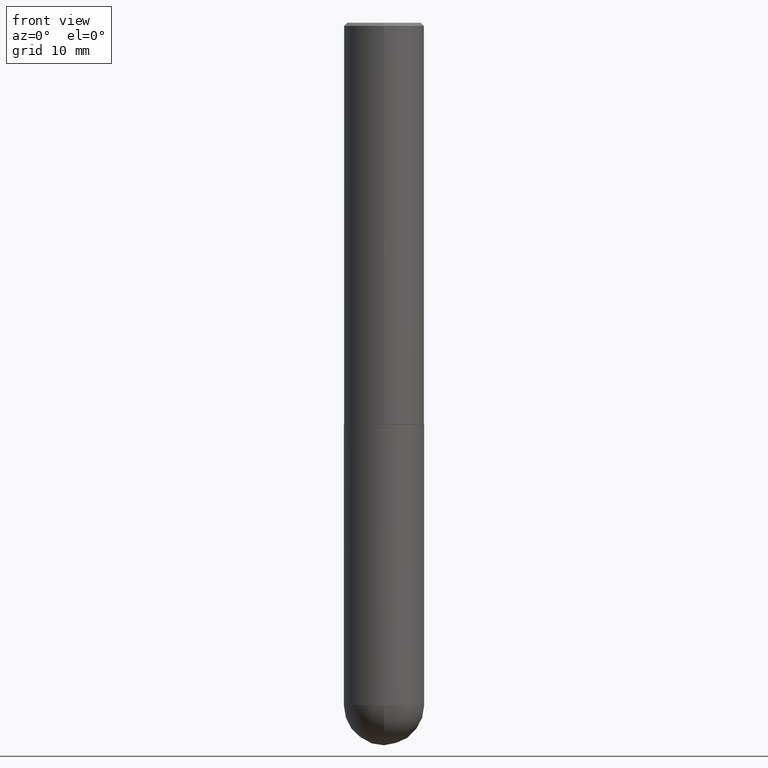
[diagram: clean part render]
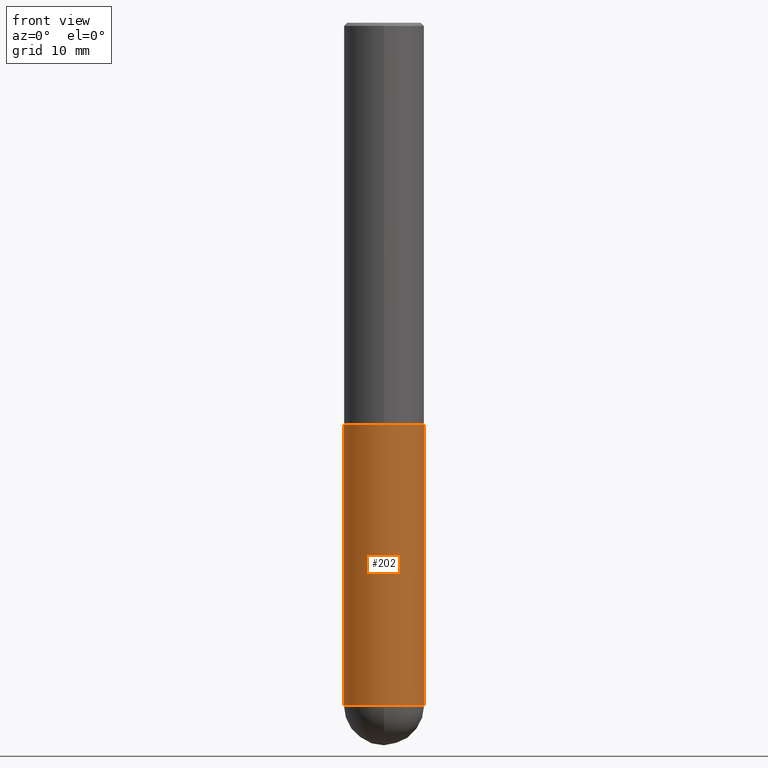
[diagram: same view with one face highlighted and labeled with its STEP entity id]
A machine part, front view. The second image highlights one B-rep face of the part: STEP entity #202.
In plain terms, the highlighted cylindrical surface (partial cylindrical patch) has radius 6.35 mm, axis along (-0, 0, 1).
Its self-contained STEP definition (entity closure, byte-faithful):
#5 = CYLINDRICAL_SURFACE ( 'NONE', #236, 0.2500000000000000000 ) ;
#19 = CARTESIAN_POINT ( 'NONE',  ( 0.2500000000000000000, -1.745740669421566678E-15, 1.219044193948983948E-29 ) ) ;
#28 = VECTOR ( 'NONE', #279, 39.37007874015748143 ) ;
#32 = CARTESIAN_POINT ( 'NONE',  ( 6.113672015462842613E-29, -8.728703347107864943E-15, -2.500000000000000000 ) ) ;
#38 = EDGE_CURVE ( 'NONE', #278, #271, #251, .T. ) ;
#48 = ORIENTED_EDGE ( 'NONE', *, *, #161, .T. ) ;
#52 = CARTESIAN_POINT ( 'NONE',  ( 0.000000000000000000, 0.000000000000000000, 0.000000000000000000 ) ) ;
#71 = AXIS2_PLACEMENT_3D ( 'NONE', #254, #125, #92 ) ;
#85 = CARTESIAN_POINT ( 'NONE',  ( -0.2500000000000000000, -1.000739267919536563E-14, -2.500000000000000000 ) ) ;
#92 = DIRECTION ( 'NONE',  ( 1.000000000000000000, -6.982962677686270655E-15, 0.000000000000000000 ) ) ;
#110 = CIRCLE ( 'NONE', #264, 0.2500000000000000000 ) ;
#125 = DIRECTION ( 'NONE',  ( -2.445468806185136597E-29, 3.491481338843145583E-15, 1.000000000000000000 ) ) ;
#135 = ORIENTED_EDGE ( 'NONE', *, *, #38, .F. ) ;
#140 = VERTEX_POINT ( 'NONE', #351 ) ;
#157 = DIRECTION ( 'NONE',  ( 1.000000000000000000, -6.982962677686266711E-15, 0.000000000000000000 ) ) ;
#158 = DIRECTION ( 'NONE',  ( 1.000000000000000000, -6.982962677686266711E-15, 4.876176775795935793E-29 ) ) ;
#161 = EDGE_CURVE ( 'NONE', #140, #302, #189, .T. ) ;
#179 = DIRECTION ( 'NONE',  ( -2.445468806185136597E-29, 3.491481338843145583E-15, 1.000000000000000000 ) ) ;
#181 = FACE_OUTER_BOUND ( 'NONE', #303, .T. ) ;
#189 = LINE ( 'NONE', #19, #28 ) ;
#190 = EDGE_CURVE ( 'NONE', #271, #302, #110, .T. ) ;
#196 = CIRCLE ( 'NONE', #71, 0.2500000000000000000 ) ;
#202 = ADVANCED_FACE ( 'NONE', ( #181 ), #5, .T. ) ;
#210 = EDGE_CURVE ( 'NONE', #278, #212, #244, .T. ) ;
#212 = VERTEX_POINT ( 'NONE', #409 ) ;
#214 = DIRECTION ( 'NONE',  ( -2.445468806185136597E-29, 3.491481338843145583E-15, 1.000000000000000000 ) ) ;
#221 = DIRECTION ( 'NONE',  ( -2.445468806185136877E-29, 3.491481338843145188E-15, 1.000000000000000000 ) ) ;
#222 = CARTESIAN_POINT ( 'NONE',  ( 0.2500000000000000000, -1.047444401652943162E-14, -2.500000000000000000 ) ) ;
#224 = CARTESIAN_POINT ( 'NONE',  ( -0.2500000000000000000, -1.000739267919536879E-14, -4.250000000000000000 ) ) ;
#229 = ORIENTED_EDGE ( 'NONE', *, *, #190, .F. ) ;
#236 = AXIS2_PLACEMENT_3D ( 'NONE', #52, #179, #158 ) ;
#239 = EDGE_CURVE ( 'NONE', #212, #140, #196, .T. ) ;
#244 = CIRCLE ( 'NONE', #330, 0.2500000000000000000 ) ;
#251 = LINE ( 'NONE', #288, #383 ) ;
#254 = CARTESIAN_POINT ( 'NONE',  ( 1.039324242628683054E-28, -1.483879569008337040E-14, -4.250000000000000000 ) ) ;
#264 = AXIS2_PLACEMENT_3D ( 'NONE', #32, #290, #157 ) ;
#271 = VERTEX_POINT ( 'NONE', #85 ) ;
#278 = VERTEX_POINT ( 'NONE', #224 ) ;
#279 = DIRECTION ( 'NONE',  ( -2.445468806185136877E-29, 3.491481338843145188E-15, 1.000000000000000000 ) ) ;
#286 = DIRECTION ( 'NONE',  ( 1.000000000000000000, -6.982962677686270655E-15, 0.000000000000000000 ) ) ;
#288 = CARTESIAN_POINT ( 'NONE',  ( -0.2500000000000000000, 1.776356839400250465E-15, -1.229733772563726445E-29 ) ) ;
#290 = DIRECTION ( 'NONE',  ( -2.445468806185136597E-29, 3.491481338843145583E-15, 1.000000000000000000 ) ) ;
#291 = CARTESIAN_POINT ( 'NONE',  ( 1.039324242628683054E-28, -1.483879569008337040E-14, -4.250000000000000000 ) ) ;
#302 = VERTEX_POINT ( 'NONE', #222 ) ;
#303 = EDGE_LOOP ( 'NONE', ( #135, #331, #400, #48, #229 ) ) ;
#330 = AXIS2_PLACEMENT_3D ( 'NONE', #291, #214, #286 ) ;
#331 = ORIENTED_EDGE ( 'NONE', *, *, #210, .T. ) ;
#351 = CARTESIAN_POINT ( 'NONE',  ( 0.2500000000000000000, -1.352949018801718751E-14, -4.250000000000000000 ) ) ;
#383 = VECTOR ( 'NONE', #221, 39.37007874015748143 ) ;
#400 = ORIENTED_EDGE ( 'NONE', *, *, #239, .T. ) ;
#409 = CARTESIAN_POINT ( 'NONE',  ( -1.776356839400148307E-15, -0.2500000000000151545, -4.249999999999999112 ) ) ;